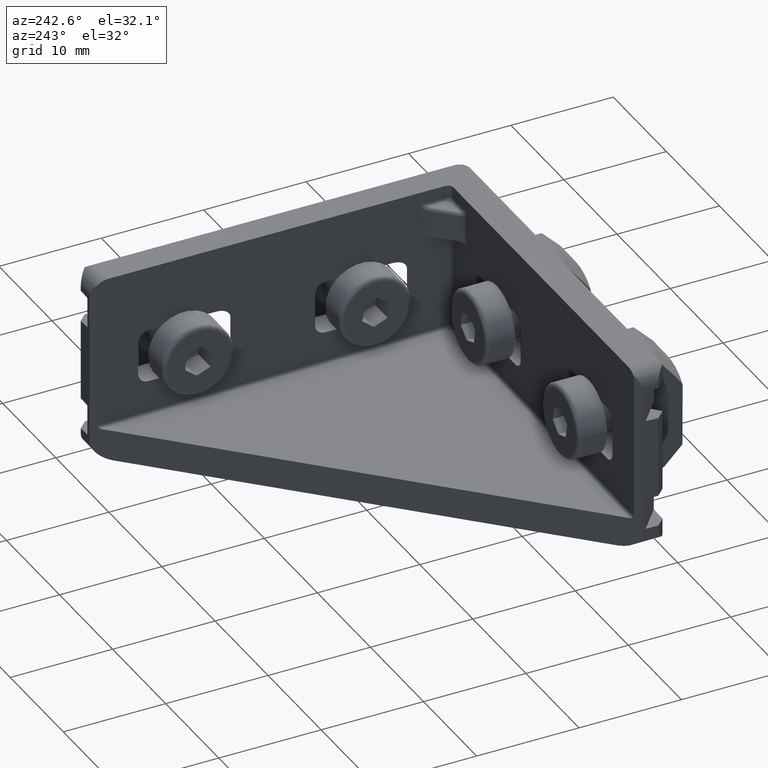
[diagram: clean part render]
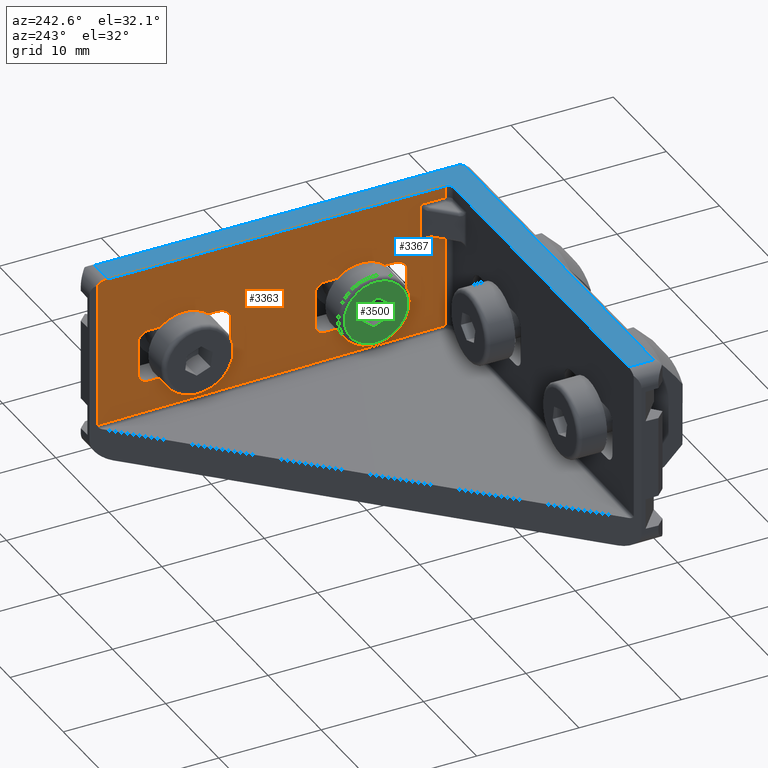
[diagram: same view with three faces highlighted in distinct colors, each labeled with its STEP entity id]
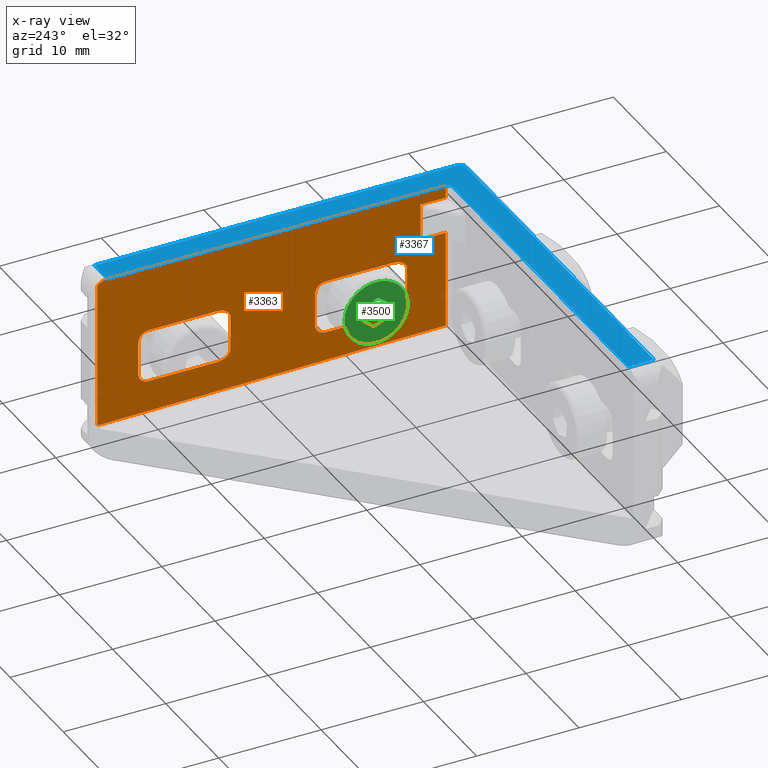
[diagram: x-ray of the same camera — body ghosted, the three highlighted faces saturated]
A machine part, auxiliary view with three faces highlighted in distinct colors.
The next image is the same camera in x-ray (body ghosted, the three faces saturated) — at least one of them is partly hidden behind the body in this view.
Their STEP definitions:

[orange] entity #3363 — the highlighted planar face has unit normal (1, 0, 0).
#64=FACE_BOUND($,#1123,.T.);
#65=FACE_BOUND($,#1124,.T.);
#108=PLANE($,#3597);
#289=LINE($,#5389,#577);
#290=LINE($,#5391,#578);
#291=LINE($,#5393,#579);
#292=LINE($,#5395,#580);
#293=LINE($,#5397,#581);
#294=LINE($,#5399,#582);
#295=LINE($,#5403,#583);
#296=LINE($,#5404,#584);
#297=LINE($,#5407,#585);
#298=LINE($,#5411,#586);
#299=LINE($,#5415,#587);
#300=LINE($,#5419,#588);
#301=LINE($,#5423,#589);
#302=LINE($,#5427,#590);
#303=LINE($,#5431,#591);
#304=LINE($,#5435,#592);
#577=VECTOR($,#4086,9.48400885760887);
#578=VECTOR($,#4087,2.45269119345812);
#579=VECTOR($,#4088,3.6);
#580=VECTOR($,#4089,2.45269119345812);
#581=VECTOR($,#4090,1.2);
#582=VECTOR($,#4091,33.);
#583=VECTOR($,#4094,14.3216910687698);
#584=VECTOR($,#4095,34.0025896753552);
#585=VECTOR($,#4096,3.27391255474874);
#586=VECTOR($,#4099,6.56188060248982);
#587=VECTOR($,#4102,3.19725530800416);
#588=VECTOR($,#4105,6.56188060248982);
#589=VECTOR($,#4108,3.27137110024009);
#590=VECTOR($,#4111,6.63812239386985);
#591=VECTOR($,#4114,3.19725530800416);
#592=VECTOR($,#4117,6.63812239386985);
#924=FACE_OUTER_BOUND($,#1122,.T.);
#1122=EDGE_LOOP($,(#2468,#2469,#2470,#2471,#2472,#2473,#2474,#2475,#2476));
#1123=EDGE_LOOP($,(#2477,#2478,#2479,#2480,#2481,#2482,#2483,#2484));
#1124=EDGE_LOOP($,(#2485,#2486,#2487,#2488,#2489,#2490,#2491,#2492));
#1324=CIRCLE($,#3598,1.5);
#1430=ELLIPSE($,#3599,1.46721546664749,1.00000000000005);
#1431=ELLIPSE($,#3600,1.00137234599782,0.99999999999991);
#1432=ELLIPSE($,#3601,1.00137234599784,0.999999999999928);
#1433=ELLIPSE($,#3602,1.46721546664742,0.999999999999997);
#1434=ELLIPSE($,#3603,1.4151842902358,1.00000000000022);
#1435=ELLIPSE($,#3604,1.00137234599806,1.00000000000009);
#1436=ELLIPSE($,#3605,1.00137234599829,1.00000000000035);
#1437=ELLIPSE($,#3606,1.4151842902358,1.00000000000022);
#1614=VERTEX_POINT($,#5387);
#1615=VERTEX_POINT($,#5388);
#1616=VERTEX_POINT($,#5390);
#1617=VERTEX_POINT($,#5392);
#1618=VERTEX_POINT($,#5394);
#1619=VERTEX_POINT($,#5396);
#1620=VERTEX_POINT($,#5398);
#1621=VERTEX_POINT($,#5400);
#1622=VERTEX_POINT($,#5402);
#1623=VERTEX_POINT($,#5405);
#1624=VERTEX_POINT($,#5406);
#1625=VERTEX_POINT($,#5408);
#1626=VERTEX_POINT($,#5410);
#1627=VERTEX_POINT($,#5412);
#1628=VERTEX_POINT($,#5414);
#1629=VERTEX_POINT($,#5416);
#1630=VERTEX_POINT($,#5418);
#1631=VERTEX_POINT($,#5421);
#1632=VERTEX_POINT($,#5422);
#1633=VERTEX_POINT($,#5424);
#1634=VERTEX_POINT($,#5426);
#1635=VERTEX_POINT($,#5428);
#1636=VERTEX_POINT($,#5430);
#1637=VERTEX_POINT($,#5432);
#1638=VERTEX_POINT($,#5434);
#1948=EDGE_CURVE($,#1614,#1615,#289,.T.);
#1949=EDGE_CURVE($,#1615,#1616,#290,.T.);
#1950=EDGE_CURVE($,#1616,#1617,#291,.T.);
#1951=EDGE_CURVE($,#1617,#1618,#292,.T.);
#1952=EDGE_CURVE($,#1618,#1619,#293,.T.);
#1953=EDGE_CURVE($,#1619,#1620,#294,.T.);
#1954=EDGE_CURVE($,#1620,#1621,#1324,.T.);
#1955=EDGE_CURVE($,#1622,#1621,#295,.T.);
#1956=EDGE_CURVE($,#1622,#1614,#296,.T.);
#1957=EDGE_CURVE($,#1623,#1624,#297,.T.);
#1958=EDGE_CURVE($,#1623,#1625,#1430,.T.);
#1959=EDGE_CURVE($,#1626,#1625,#298,.T.);
#1960=EDGE_CURVE($,#1626,#1627,#1431,.T.);
#1961=EDGE_CURVE($,#1627,#1628,#299,.T.);
#1962=EDGE_CURVE($,#1628,#1629,#1432,.T.);
#1963=EDGE_CURVE($,#1629,#1630,#300,.T.);
#1964=EDGE_CURVE($,#1630,#1624,#1433,.T.);
#1965=EDGE_CURVE($,#1631,#1632,#301,.T.);
#1966=EDGE_CURVE($,#1631,#1633,#1434,.T.);
#1967=EDGE_CURVE($,#1634,#1633,#302,.T.);
#1968=EDGE_CURVE($,#1634,#1635,#1435,.T.);
#1969=EDGE_CURVE($,#1635,#1636,#303,.T.);
#1970=EDGE_CURVE($,#1636,#1637,#1436,.T.);
#1971=EDGE_CURVE($,#1637,#1638,#304,.T.);
#1972=EDGE_CURVE($,#1638,#1632,#1437,.T.);
#2468=ORIENTED_EDGE($,*,*,#1948,.T.);
#2469=ORIENTED_EDGE($,*,*,#1949,.T.);
#2470=ORIENTED_EDGE($,*,*,#1950,.T.);
#2471=ORIENTED_EDGE($,*,*,#1951,.T.);
#2472=ORIENTED_EDGE($,*,*,#1952,.T.);
#2473=ORIENTED_EDGE($,*,*,#1953,.T.);
#2474=ORIENTED_EDGE($,*,*,#1954,.T.);
#2475=ORIENTED_EDGE($,*,*,#1955,.F.);
#2476=ORIENTED_EDGE($,*,*,#1956,.T.);
#2477=ORIENTED_EDGE($,*,*,#1957,.F.);
#2478=ORIENTED_EDGE($,*,*,#1958,.T.);
#2479=ORIENTED_EDGE($,*,*,#1959,.F.);
#2480=ORIENTED_EDGE($,*,*,#1960,.T.);
#2481=ORIENTED_EDGE($,*,*,#1961,.T.);
#2482=ORIENTED_EDGE($,*,*,#1962,.T.);
#2483=ORIENTED_EDGE($,*,*,#1963,.T.);
#2484=ORIENTED_EDGE($,*,*,#1964,.T.);
#2485=ORIENTED_EDGE($,*,*,#1965,.F.);
#2486=ORIENTED_EDGE($,*,*,#1966,.T.);
#2487=ORIENTED_EDGE($,*,*,#1967,.F.);
#2488=ORIENTED_EDGE($,*,*,#1968,.T.);
#2489=ORIENTED_EDGE($,*,*,#1969,.T.);
#2490=ORIENTED_EDGE($,*,*,#1970,.T.);
#2491=ORIENTED_EDGE($,*,*,#1971,.T.);
#2492=ORIENTED_EDGE($,*,*,#1972,.T.);
#3363=ADVANCED_FACE($,(#924,#64,#65),#108,.F.);
#3597=AXIS2_PLACEMENT_3D($,#5386,#4084,#4085);
#3598=AXIS2_PLACEMENT_3D($,#5401,#4092,#4093);
#3599=AXIS2_PLACEMENT_3D($,#5409,#4097,#4098);
#3600=AXIS2_PLACEMENT_3D($,#5413,#4100,#4101);
#3601=AXIS2_PLACEMENT_3D($,#5417,#4103,#4104);
#3602=AXIS2_PLACEMENT_3D($,#5420,#4106,#4107);
#3603=AXIS2_PLACEMENT_3D($,#5425,#4109,#4110);
#3604=AXIS2_PLACEMENT_3D($,#5429,#4112,#4113);
#3605=AXIS2_PLACEMENT_3D($,#5433,#4115,#4116);
#3606=AXIS2_PLACEMENT_3D($,#5436,#4118,#4119);
#4084=DIRECTION('center_axis',(1.,0.,0.));
#4085=DIRECTION('ref_axis',(0.,0.,-1.));
#4086=DIRECTION($,(0.,0.,1.));
#4087=DIRECTION($,(0.,1.,0.));
#4088=DIRECTION($,(0.,0.,1.));
#4089=DIRECTION($,(0.,-1.,0.));
#4090=DIRECTION($,(0.,0.,1.));
#4091=DIRECTION($,(0.,1.,0.));
#4092=DIRECTION('center_axis',(-1.,0.,0.));
#4093=DIRECTION('ref_axis',(0.,1.,0.));
#4094=DIRECTION($,(0.,0.,1.));
#4095=DIRECTION($,(2.7753461719869E-016,-0.999923838878746,0.0123416547509368));
#4096=DIRECTION($,(0.,0.,1.));
#4097=DIRECTION('center_axis',(1.,3.72779320051005E-015,1.42359933908915E-015));
#4098=DIRECTION('ref_axis',(-3.79283931991231E-015,0.998807945373678,0.048812787857403));
#4099=DIRECTION($,(0.,-1.,0.));
#4100=DIRECTION('center_axis',(1.,-7.09331182294331E-015,7.6379414368926E-015));
#4101=DIRECTION('ref_axis',(-7.6379414366828E-015,2.95771953838494E-011,
1.));
#4102=DIRECTION($,(0.,0.,1.));
#4103=DIRECTION('center_axis',(1.,-7.09331182294329E-015,-7.63794143689258E-015));
#4104=DIRECTION('ref_axis',(7.63794143672676E-015,-2.33773601975857E-011,
1.));
#4105=DIRECTION($,(0.,-1.,0.));
#4106=DIRECTION('center_axis',(1.,6.5478040097948E-015,-5.55285572354857E-015));
#4107=DIRECTION('ref_axis',(-6.81104903816873E-015,0.998807945373681,-0.0488127878573473));
#4108=DIRECTION($,(0.,0.,1.));
#4109=DIRECTION('center_axis',(1.,1.25670495694509E-015,2.35046757929534E-015));
#4110=DIRECTION('ref_axis',(-1.37799665485889E-015,0.99862953475456,0.0523359562432004));
#4111=DIRECTION($,(0.,-1.,0.));
#4112=DIRECTION('center_axis',(1.,1.01661504209232E-014,-1.12609195676468E-014));
#4113=DIRECTION('ref_axis',(1.12609195679775E-014,-3.25349149207778E-011,
1.));
#4114=DIRECTION($,(0.,0.,1.));
#4115=DIRECTION('center_axis',(1.,8.82599267926864E-015,9.92259846560056E-015));
#4116=DIRECTION('ref_axis',(-9.92259846656644E-015,1.09435622917365E-010,
1.));
#4117=DIRECTION($,(0.,-1.,0.));
#4118=DIRECTION('center_axis',(1.,1.25670495694509E-015,-2.35046757929534E-015));
#4119=DIRECTION('ref_axis',(-1.37799665485889E-015,0.998629534754561,-0.0523359562431999));
#5386=CARTESIAN_POINT('Origin',(-3.,39.9317532577881,-61.2293863393806));
#5387=CARTESIAN_POINT('',(-2.99999999999999,3.5,-5.28400885760886));
#5388=CARTESIAN_POINT('',(-2.99999999999999,3.5,4.2));
#5389=CARTESIAN_POINT($,(-2.99999999999999,3.5,-5.28400885760886));
#5390=CARTESIAN_POINT('',(-2.99999999999999,5.95269119345812,4.2));
#5391=CARTESIAN_POINT($,(-2.99999999999999,3.5,4.2));
#5392=CARTESIAN_POINT('',(-2.99999999999999,5.95269119345812,7.8));
#5393=CARTESIAN_POINT($,(-2.99999999999999,5.95269119345812,4.2));
#5394=CARTESIAN_POINT('',(-2.99999999999999,3.5,7.8));
#5395=CARTESIAN_POINT($,(-3.,5.95269119345812,7.79999999999999));
#5396=CARTESIAN_POINT('',(-2.99999999999999,3.5,9.));
#5397=CARTESIAN_POINT($,(-2.99999999999999,3.5,7.8));
#5398=CARTESIAN_POINT('',(-3.,36.5,9.));
#5399=CARTESIAN_POINT($,(-3.,3.5,9.));
#5400=CARTESIAN_POINT('',(-3.00000000000001,37.5,8.6180339887499));
#5401=CARTESIAN_POINT('Origin',(-3.,36.5,7.5));
#5402=CARTESIAN_POINT('',(-3.00000000000001,37.5,-5.70365708001987));
#5403=CARTESIAN_POINT($,(-3.00000000000001,37.5,-5.70365708001987));
#5404=CARTESIAN_POINT($,(-3.,37.5,-5.70365708001987));
#5405=CARTESIAN_POINT('',(-3.,7.25847230651802,-1.63695627737437));
#5406=CARTESIAN_POINT('',(-3.,7.25847230651802,1.63695627737437));
#5407=CARTESIAN_POINT($,(-3.,7.25847230651802,-1.63695627737437));
#5408=CARTESIAN_POINT('',(-3.,8.66862805027349,-2.6));
#5409=CARTESIAN_POINT('Origin',(-3.,8.72475149215771,-1.59862765400203));
#5410=CARTESIAN_POINT('',(-3.,15.2305086527633,-2.6));
#5411=CARTESIAN_POINT($,(-3.,15.2305086527633,-2.6));
#5412=CARTESIAN_POINT('',(-3.,16.2305086527633,-1.59862765400208));
#5413=CARTESIAN_POINT('Origin',(-3.00000000000001,15.2305086527634,-1.59862765400218));
#5414=CARTESIAN_POINT('',(-3.,16.2305086527633,1.59862765400208));
#5415=CARTESIAN_POINT($,(-3.,16.2305086527633,-1.59862765400208));
#5416=CARTESIAN_POINT('',(-3.,15.2305086527633,2.6));
#5417=CARTESIAN_POINT('Origin',(-3.00000000000001,15.2305086527634,1.59862765400216));
#5418=CARTESIAN_POINT('',(-3.,8.66862805027349,2.6));
#5419=CARTESIAN_POINT($,(-3.,15.2305086527633,2.6));
#5420=CARTESIAN_POINT('Origin',(-3.00000000000001,8.72475149215765,1.59862765400208));
#5421=CARTESIAN_POINT('',(-3.,24.5,-1.63568555012005));
#5422=CARTESIAN_POINT('',(-3.,24.5,1.63568555012005));
#5423=CARTESIAN_POINT($,(-3.,24.5,-1.63568555012005));
#5424=CARTESIAN_POINT('',(-3.,25.8618776061302,-2.6));
#5425=CARTESIAN_POINT('Origin',(-3.,25.9142135623734,-1.59862765400185));
#5426=CARTESIAN_POINT('',(-3.,32.5,-2.6));
#5427=CARTESIAN_POINT($,(-3.,32.5,-2.6));
#5428=CARTESIAN_POINT('',(-2.99999999999999,33.5,-1.59862765400208));
#5429=CARTESIAN_POINT('Origin',(-2.99999999999998,32.4999999999999,-1.59862765400194));
#5430=CARTESIAN_POINT('',(-2.99999999999999,33.5,1.59862765400208));
#5431=CARTESIAN_POINT($,(-2.99999999999999,33.5,-1.59862765400208));
#5432=CARTESIAN_POINT('',(-3.,32.5,2.6));
#5433=CARTESIAN_POINT('Origin',(-2.99999999999999,32.4999999999997,1.59862765400171));
#5434=CARTESIAN_POINT('',(-3.,25.8618776061302,2.6));
#5435=CARTESIAN_POINT($,(-3.,32.5,2.6));
#5436=CARTESIAN_POINT('Origin',(-3.,25.9142135623734,1.59862765400185));

[blue] entity #3367 — the highlighted planar face has unit normal (0, 0, -1).
#112=PLANE($,#3619);
#280=LINE($,#5353,#568);
#294=LINE($,#5399,#582);
#309=LINE($,#5463,#597);
#310=LINE($,#5464,#598);
#311=LINE($,#5467,#599);
#312=LINE($,#5468,#600);
#568=VECTOR($,#4059,32.9999999999999);
#582=VECTOR($,#4091,33.);
#597=VECTOR($,#4152,35.5);
#598=VECTOR($,#4153,2.5);
#599=VECTOR($,#4156,2.50000000000008);
#600=VECTOR($,#4157,35.4999999999999);
#928=FACE_OUTER_BOUND($,#1128,.T.);
#1128=EDGE_LOOP($,(#2516,#2517,#2518,#2519,#2520,#2521,#2522,#2523));
#1325=CIRCLE($,#3620,0.5);
#1326=CIRCLE($,#3621,0.5);
#1589=VERTEX_POINT($,#5336);
#1597=VERTEX_POINT($,#5351);
#1619=VERTEX_POINT($,#5396);
#1620=VERTEX_POINT($,#5398);
#1644=VERTEX_POINT($,#5459);
#1645=VERTEX_POINT($,#5460);
#1646=VERTEX_POINT($,#5462);
#1647=VERTEX_POINT($,#5466);
#1931=EDGE_CURVE($,#1589,#1597,#280,.T.);
#1953=EDGE_CURVE($,#1619,#1620,#294,.T.);
#1986=EDGE_CURVE($,#1644,#1645,#1325,.T.);
#1987=EDGE_CURVE($,#1645,#1646,#309,.T.);
#1988=EDGE_CURVE($,#1646,#1620,#310,.T.);
#1989=EDGE_CURVE($,#1619,#1589,#1326,.T.);
#1990=EDGE_CURVE($,#1597,#1647,#311,.T.);
#1991=EDGE_CURVE($,#1647,#1644,#312,.T.);
#2516=ORIENTED_EDGE($,*,*,#1986,.T.);
#2517=ORIENTED_EDGE($,*,*,#1987,.T.);
#2518=ORIENTED_EDGE($,*,*,#1988,.T.);
#2519=ORIENTED_EDGE($,*,*,#1953,.F.);
#2520=ORIENTED_EDGE($,*,*,#1989,.T.);
#2521=ORIENTED_EDGE($,*,*,#1931,.T.);
#2522=ORIENTED_EDGE($,*,*,#1990,.T.);
#2523=ORIENTED_EDGE($,*,*,#1991,.T.);
#3367=ADVANCED_FACE($,(#928),#112,.F.);
#3619=AXIS2_PLACEMENT_3D($,#5458,#4148,#4149);
#3620=AXIS2_PLACEMENT_3D($,#5461,#4150,#4151);
#3621=AXIS2_PLACEMENT_3D($,#5465,#4154,#4155);
#4059=DIRECTION($,(-1.,0.,0.));
#4091=DIRECTION($,(0.,1.,0.));
#4148=DIRECTION('center_axis',(0.,0.,-1.));
#4149=DIRECTION('ref_axis',(-1.,0.,0.));
#4150=DIRECTION('center_axis',(0.,0.,1.));
#4151=DIRECTION('ref_axis',(-1.,0.,0.));
#4152=DIRECTION($,(0.,1.,0.));
#4153=DIRECTION($,(-1.,0.,0.));
#4154=DIRECTION('center_axis',(0.,0.,-1.));
#4155=DIRECTION('ref_axis',(-1.,0.,0.));
#4156=DIRECTION($,(0.,-1.,0.));
#4157=DIRECTION($,(1.,0.,0.));
#5336=CARTESIAN_POINT('',(-3.5,2.99999999999999,9.));
#5351=CARTESIAN_POINT('',(-36.4999999999999,2.99999999999999,9.));
#5353=CARTESIAN_POINT($,(-3.49999999999999,2.99999999999999,9.));
#5396=CARTESIAN_POINT('',(-2.99999999999999,3.5,9.));
#5398=CARTESIAN_POINT('',(-3.,36.5,9.));
#5399=CARTESIAN_POINT($,(-3.,3.5,9.));
#5458=CARTESIAN_POINT('Origin',(-37.9999999999999,-9.03140409680425E-014,
9.));
#5459=CARTESIAN_POINT('',(-0.999999999999999,0.499999999999998,9.));
#5460=CARTESIAN_POINT('',(-0.5,0.999999999999998,9.));
#5461=CARTESIAN_POINT('Origin',(-1.,0.999999999999998,9.));
#5462=CARTESIAN_POINT('',(-0.500000000000001,36.5,9.));
#5463=CARTESIAN_POINT($,(-0.500000000000001,0.999999999999998,9.));
#5464=CARTESIAN_POINT($,(-0.5,36.5,9.));
#5465=CARTESIAN_POINT('Origin',(-3.49999999999999,3.5,9.));
#5466=CARTESIAN_POINT('',(-36.4999999999999,0.499999999999913,9.));
#5467=CARTESIAN_POINT($,(-36.4999999999999,2.99999999999999,9.));
#5468=CARTESIAN_POINT($,(-36.4999999999999,0.49999999999991,9.));

[green] entity #3500 — the highlighted planar face has unit normal (-1, 0, -0).
#71=FACE_BOUND($,#1266,.T.);
#72=FACE_BOUND($,#1267,.T.);
#161=PLANE($,#3802);
#410=LINE($,#6660,#698);
#411=LINE($,#6662,#699);
#412=LINE($,#6664,#700);
#413=LINE($,#6666,#701);
#414=LINE($,#6668,#702);
#415=LINE($,#6669,#703);
#698=VECTOR($,#4617,1.44337567297406);
#699=VECTOR($,#4618,1.44337567297407);
#700=VECTOR($,#4619,1.44337567297407);
#701=VECTOR($,#4620,1.44337567297407);
#702=VECTOR($,#4621,1.44337567297407);
#703=VECTOR($,#4622,1.44337567297406);
#1266=EDGE_LOOP($,(#3091,#3092,#3093,#3094,#3095,#3096));
#1267=EDGE_LOOP($,(#3097));
#1383=CIRCLE($,#3800,3.1);
#1722=VERTEX_POINT($,#6653);
#1724=VERTEX_POINT($,#6658);
#1725=VERTEX_POINT($,#6659);
#1726=VERTEX_POINT($,#6661);
#1727=VERTEX_POINT($,#6663);
#1728=VERTEX_POINT($,#6665);
#1729=VERTEX_POINT($,#6667);
#2190=EDGE_CURVE($,#1722,#1722,#1383,.T.);
#2192=EDGE_CURVE($,#1724,#1725,#410,.T.);
#2193=EDGE_CURVE($,#1725,#1726,#411,.T.);
#2194=EDGE_CURVE($,#1726,#1727,#412,.T.);
#2195=EDGE_CURVE($,#1727,#1728,#413,.T.);
#2196=EDGE_CURVE($,#1728,#1729,#414,.T.);
#2197=EDGE_CURVE($,#1729,#1724,#415,.T.);
#3091=ORIENTED_EDGE($,*,*,#2192,.T.);
#3092=ORIENTED_EDGE($,*,*,#2193,.T.);
#3093=ORIENTED_EDGE($,*,*,#2194,.T.);
#3094=ORIENTED_EDGE($,*,*,#2195,.T.);
#3095=ORIENTED_EDGE($,*,*,#2196,.T.);
#3096=ORIENTED_EDGE($,*,*,#2197,.T.);
#3097=ORIENTED_EDGE($,*,*,#2190,.F.);
#3500=ADVANCED_FACE($,(#71,#72),#161,.T.);
#3800=AXIS2_PLACEMENT_3D($,#6654,#4611,#4612);
#3802=AXIS2_PLACEMENT_3D($,#6657,#4615,#4616);
#4611=DIRECTION('center_axis',(1.,1.57138040785068E-017,0.));
#4612=DIRECTION('ref_axis',(1.57138040785068E-017,-1.,1.22464679914735E-016));
#4615=DIRECTION('center_axis',(-1.,-1.57138040785068E-017,0.));
#4616=DIRECTION('ref_axis',(0.,0.,1.));
#4617=DIRECTION($,(-1.81302353424663E-032,1.15377761183014E-015,1.));
#4618=DIRECTION($,(1.36085535220784E-017,-0.866025403784438,0.500000000000001));
#4619=DIRECTION($,(1.36085535220784E-017,-0.866025403784439,-0.5));
#4620=DIRECTION($,(0.,0.,-1.));
#4621=DIRECTION($,(-1.36085535220784E-017,0.866025403784438,-0.5));
#4622=DIRECTION($,(-1.36085535220784E-017,0.866025403784439,0.5));
#6653=CARTESIAN_POINT('',(-2.8,3.1,0.));
#6654=CARTESIAN_POINT('Origin',(-2.8,-1.69709084047874E-016,0.));
#6657=CARTESIAN_POINT('Origin',(-2.8,2.47168783648703,0.));
#6658=CARTESIAN_POINT('',(-2.8,1.25,-0.721687836487033));
#6659=CARTESIAN_POINT('',(-2.8,1.25,0.721687836487031));
#6660=CARTESIAN_POINT($,(-2.8,1.25,0.360843918243515));
#6661=CARTESIAN_POINT('',(-2.8,7.053455739611E-018,1.44337567297407));
#6662=CARTESIAN_POINT($,(-2.8,0.3125,1.26295371385231));
#6663=CARTESIAN_POINT('',(-2.8,-1.25,0.721687836487033));
#6664=CARTESIAN_POINT($,(-2.8,-0.937500000000001,0.902109795608791));
#6665=CARTESIAN_POINT('',(-2.8,-1.25,-0.721687836487032));
#6666=CARTESIAN_POINT($,(-2.8,-1.25,-0.360843918243516));
#6667=CARTESIAN_POINT('',(-2.8,-3.43781513498227E-016,-1.44337567297407));
#6668=CARTESIAN_POINT($,(-2.8,-0.312500000000001,-1.26295371385231));
#6669=CARTESIAN_POINT($,(-2.8,0.9375,-0.902109795608791));